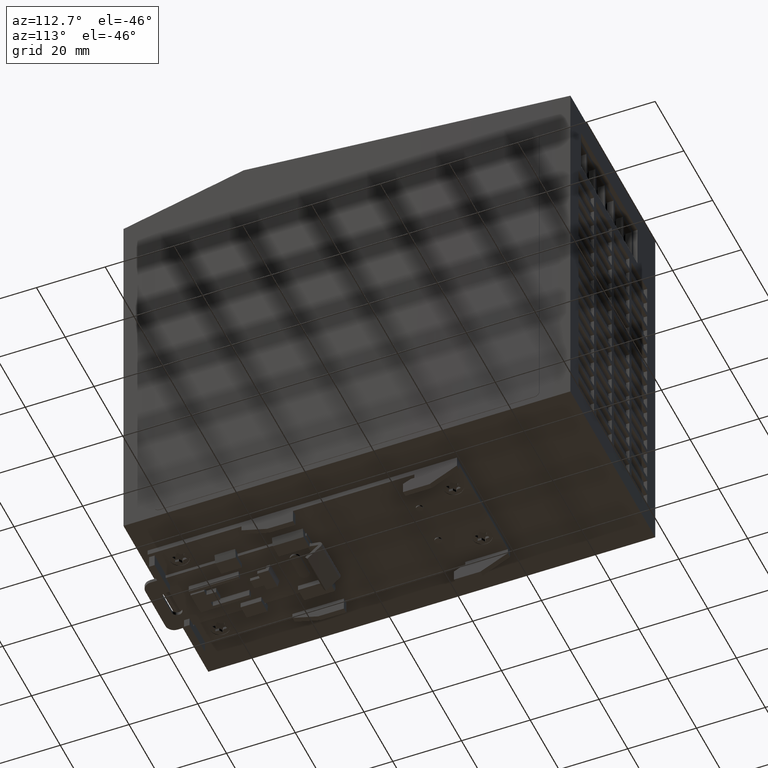
[diagram: clean part render]
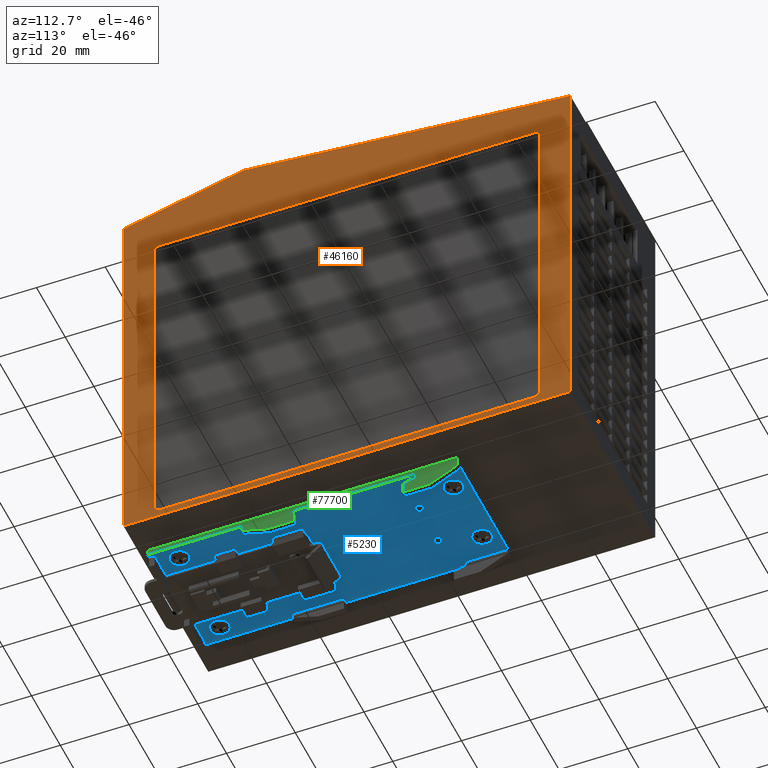
[diagram: same view with three faces highlighted in distinct colors, each labeled with its STEP entity id]
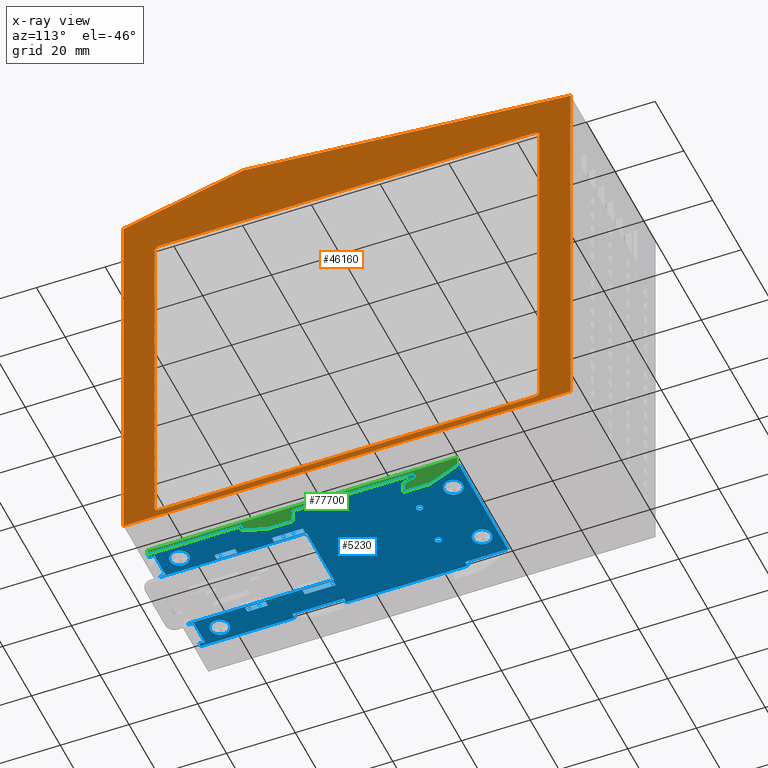
[diagram: x-ray of the same camera — body ghosted, the three highlighted faces saturated]
A machine part, auxiliary view with three faces highlighted in distinct colors.
The next image is the same camera in x-ray (body ghosted, the three faces saturated) — at least one of them is partly hidden behind the body in this view.
Their STEP definitions:

[orange] entity #46160 — the highlighted planar face has unit normal (-1, 0, 0).
#21340=CARTESIAN_POINT('',(59.,3.06755310461,8.24456136010134));
#21350=VERTEX_POINT('',#21340);
#21380=CARTESIAN_POINT('',(59.,0.,8.24457053163474));
#21390=DIRECTION('',(0.,0.99999999999553,-2.98985317938209E-6));
#21400=VECTOR('',#21390,1.);
#21410=LINE('',#21380,#21400);
#21420=CARTESIAN_POINT('',(59.,133.09953961981,8.24417258355303));
#21430=VERTEX_POINT('',#21420);
#21440=EDGE_CURVE('',#21350,#21430,#21410,.T.);
#22470=CARTESIAN_POINT('',(59.,38.0066903348388,131.664919593357));
#22480=VERTEX_POINT('',#22470);
#22510=CARTESIAN_POINT('',(59.,0.,122.188787397491));
#22520=DIRECTION('',(0.,0.970295726275989,0.241921895599697));
#22530=VECTOR('',#22520,1.);
#22540=LINE('',#22510,#22530);
#22550=CARTESIAN_POINT('',(59.,3.06755310461,122.953614286679));
#22560=VERTEX_POINT('',#22550);
#22570=EDGE_CURVE('',#22560,#22480,#22540,.T.);
#45040=CARTESIAN_POINT('',(59.,133.09953961981,122.508519645316));
#45050=VERTEX_POINT('',#45040);
#45150=CARTESIAN_POINT('',(59.,133.09953961981,0.));
#45160=DIRECTION('',(0.,0.,-1.));
#45170=VECTOR('',#45160,1.);
#45180=LINE('',#45150,#45170);
#45190=EDGE_CURVE('',#45050,#21430,#45180,.T.);
#45240=CARTESIAN_POINT('',(59.,5.0000077735952,8.2445555823456));
#45250=DIRECTION('',(-1.,0.,0.));
#45260=DIRECTION('',(0.,-0.99999999999553,2.98985317938209E-6));
#45270=AXIS2_PLACEMENT_3D('',#45240,#45250,#45260);
#45280=PLANE('',#45270);
#45290=ORIENTED_EDGE('',*,*,#22570,.F.);
#45300=CARTESIAN_POINT('',(59.,0.,135.324547630837));
#45310=DIRECTION('',(0.,0.99539619836718,-0.0958457525202146));
#45320=VECTOR('',#45310,1.);
#45330=LINE('',#45300,#45320);
#45340=EDGE_CURVE('',#22480,#45050,#45330,.T.);
#45350=ORIENTED_EDGE('',*,*,#45340,.F.);
#45360=ORIENTED_EDGE('',*,*,#45190,.F.);
#45370=ORIENTED_EDGE('',*,*,#21440,.T.);
#45380=CARTESIAN_POINT('',(59.,3.06755310461,0.));
#45390=DIRECTION('',(0.,0.,-1.));
#45400=VECTOR('',#45390,1.);
#45410=LINE('',#45380,#45400);
#45420=EDGE_CURVE('',#22560,#21350,#45410,.T.);
#45430=ORIENTED_EDGE('',*,*,#45420,.T.);
#45440=EDGE_LOOP('',(#45430,#45370,#45360,#45350,#45290));
#45450=FACE_OUTER_BOUND('',#45440,.T.);
#45460=CARTESIAN_POINT('',(59.,0.,112.244430197876));
#45470=DIRECTION('',(0.,-1.,0.));
#45480=VECTOR('',#45470,1.);
#45490=LINE('',#45460,#45480);
#45500=CARTESIAN_POINT('',(59.,122.59953961984,112.244430197876));
#45510=VERTEX_POINT('',#45500);
#45520=CARTESIAN_POINT('',(59.,13.59953961984,112.244430197876));
#45530=VERTEX_POINT('',#45520);
#45540=EDGE_CURVE('',#45510,#45530,#45490,.T.);
#45550=ORIENTED_EDGE('',*,*,#45540,.F.);
#45560=CARTESIAN_POINT('',(59.,13.59953961984,110.744430197876));
#45570=DIRECTION('',(-1.,0.,0.));
#45580=DIRECTION('',(0.,-1.,0.));
#45590=AXIS2_PLACEMENT_3D('',#45560,#45570,#45580);
#45600=CIRCLE('',#45590,1.5);
#45610=CARTESIAN_POINT('',(59.,12.09953961984,110.744430197876));
#45620=VERTEX_POINT('',#45610);
#45630=EDGE_CURVE('',#45620,#45530,#45600,.T.);
#45640=ORIENTED_EDGE('',*,*,#45630,.T.);
#45650=CARTESIAN_POINT('',(59.,12.09953961984,0.));
#45660=DIRECTION('',(0.,0.,-1.));
#45670=VECTOR('',#45660,1.);
#45680=LINE('',#45650,#45670);
#45690=CARTESIAN_POINT('',(59.,12.09953961984,11.7444301978763));
#45700=VERTEX_POINT('',#45690);
#45710=EDGE_CURVE('',#45620,#45700,#45680,.T.);
#45720=ORIENTED_EDGE('',*,*,#45710,.F.);
#45730=CARTESIAN_POINT('',(59.,13.59953961984,11.7444301978763));
#45740=DIRECTION('',(-1.,0.,0.));
#45750=DIRECTION('',(0.,0.,-1.));
#45760=AXIS2_PLACEMENT_3D('',#45730,#45740,#45750);
#45770=CIRCLE('',#45760,1.5);
#45780=CARTESIAN_POINT('',(59.,13.59953961984,10.2444301978763));
#45790=VERTEX_POINT('',#45780);
#45800=EDGE_CURVE('',#45790,#45700,#45770,.T.);
#45810=ORIENTED_EDGE('',*,*,#45800,.T.);
#45820=CARTESIAN_POINT('',(59.,0.,10.2444301978763));
#45830=DIRECTION('',(0.,1.,0.));
#45840=VECTOR('',#45830,1.);
#45850=LINE('',#45820,#45840);
#45860=CARTESIAN_POINT('',(59.,122.59953961984,10.2444301978763));
#45870=VERTEX_POINT('',#45860);
#45880=EDGE_CURVE('',#45790,#45870,#45850,.T.);
#45890=ORIENTED_EDGE('',*,*,#45880,.F.);
#45900=CARTESIAN_POINT('',(59.,122.59953961984,11.7444301978763));
#45910=DIRECTION('',(-1.,0.,0.));
#45920=DIRECTION('',(0.,1.,0.));
#45930=AXIS2_PLACEMENT_3D('',#45900,#45910,#45920);
#45940=CIRCLE('',#45930,1.5);
#45950=CARTESIAN_POINT('',(59.,124.09953961984,11.7444301978763));
#45960=VERTEX_POINT('',#45950);
#45970=EDGE_CURVE('',#45960,#45870,#45940,.T.);
#45980=ORIENTED_EDGE('',*,*,#45970,.T.);
#45990=CARTESIAN_POINT('',(59.,124.09953961984,0.));
#46000=DIRECTION('',(0.,0.,1.));
#46010=VECTOR('',#46000,1.);
#46020=LINE('',#45990,#46010);
#46030=CARTESIAN_POINT('',(59.,124.09953961984,110.744430197876));
#46040=VERTEX_POINT('',#46030);
#46050=EDGE_CURVE('',#45960,#46040,#46020,.T.);
#46060=ORIENTED_EDGE('',*,*,#46050,.F.);
#46070=CARTESIAN_POINT('',(59.,122.59953961984,110.744430197876));
#46080=DIRECTION('',(-1.,0.,0.));
#46090=DIRECTION('',(0.,0.,1.));
#46100=AXIS2_PLACEMENT_3D('',#46070,#46080,#46090);
#46110=CIRCLE('',#46100,1.5);
#46120=EDGE_CURVE('',#45510,#46040,#46110,.T.);
#46130=ORIENTED_EDGE('',*,*,#46120,.T.);
#46140=EDGE_LOOP('',(#46130,#46060,#45980,#45890,#45810,#45720,#45640,
#45550));
#46150=FACE_BOUND('',#46140,.T.);
#46160=ADVANCED_FACE('',(#45450,#46150),#45280,.F.);

[blue] entity #5230 — the highlighted planar face has unit normal (0, 0, 1).
#590=CARTESIAN_POINT('',(39.3,5.5000029898286,6.64455408746699));
#600=VERTEX_POINT('',#590);
#750=CARTESIAN_POINT('',(39.3,7.10000298982143,6.64454930370191));
#760=VERTEX_POINT('',#750);
#790=CARTESIAN_POINT('',(39.3,0.,6.64457053166842));
#800=DIRECTION('',(0.,0.99999999999553,-2.98985317938209E-6));
#810=VECTOR('',#800,1.);
#820=LINE('',#790,#810);
#830=EDGE_CURVE('',#600,#760,#820,.T.);
#950=CARTESIAN_POINT('',(25.5719295718148,5.5000029898286,6.644554087467
));
#960=DIRECTION('',(-0.,2.98985317938209E-6,0.99999999999553));
#970=DIRECTION('',(1.,0.,0.));
#980=AXIS2_PLACEMENT_3D('',#950,#960,#970);
#990=PLANE('',#980);
#1000=CARTESIAN_POINT('',(19.6821231691335,0.,6.64457053166842));
#1010=DIRECTION('',(2.15024948946507E-22,-0.99999999999553,
2.98985317938209E-6));
#1020=VECTOR('',#1010,1.);
#1030=LINE('',#1000,#1020);
#1040=CARTESIAN_POINT('',(19.6821231691335,28.000002989728,
6.64448681577046));
#1050=VERTEX_POINT('',#1040);
#1060=CARTESIAN_POINT('',(19.6821231691335,22.0000029897548,
6.64450475488954));
#1070=VERTEX_POINT('',#1060);
#1080=EDGE_CURVE('',#1050,#1070,#1030,.T.);
#1090=ORIENTED_EDGE('',*,*,#1080,.F.);
#1100=CARTESIAN_POINT('',(0.,22.0000029897548,6.64450475488954));
#1110=DIRECTION('',(1.,-2.11758236812629E-22,6.33126037606456E-28));
#1120=VECTOR('',#1110,1.);
#1130=LINE('',#1100,#1120);
#1140=CARTESIAN_POINT('',(18.0574405901159,22.0000029897548,
6.64450475488954));
#1150=VERTEX_POINT('',#1140);
#1160=EDGE_CURVE('',#1150,#1070,#1130,.T.);
#1170=ORIENTED_EDGE('',*,*,#1160,.T.);
#1180=CARTESIAN_POINT('',(18.0574405901159,0.,6.64457053166842));
#1190=DIRECTION('',(-2.15024948946507E-22,0.99999999999553,
-2.98985317938209E-6));
#1200=VECTOR('',#1190,1.);
#1210=LINE('',#1180,#1200);
#1220=CARTESIAN_POINT('',(18.0574405901159,28.000002989728,
6.64448681577046));
#1230=VERTEX_POINT('',#1220);
#1240=EDGE_CURVE('',#1150,#1230,#1210,.T.);
#1250=ORIENTED_EDGE('',*,*,#1240,.F.);
#1260=CARTESIAN_POINT('',(0.,28.000002989728,6.64448681577046));
#1270=DIRECTION('',(1.,-2.11758236812629E-22,6.33126037606456E-28));
#1280=VECTOR('',#1270,1.);
#1290=LINE('',#1260,#1280);
#1300=EDGE_CURVE('',#1230,#1050,#1290,.T.);
#1310=ORIENTED_EDGE('',*,*,#1300,.F.);
#1320=EDGE_LOOP('',(#1310,#1250,#1170,#1090));
#1330=FACE_BOUND('',#1320,.T.);
#1340=CARTESIAN_POINT('',(40.9425594098841,0.,6.64457053166842));
#1350=DIRECTION('',(2.15024948946507E-22,-0.99999999999553,
2.98985317938209E-6));
#1360=VECTOR('',#1350,1.);
#1370=LINE('',#1340,#1360);
#1380=CARTESIAN_POINT('',(40.9425594098841,47.70000298964,
6.64442791566283));
#1390=VERTEX_POINT('',#1380);
#1400=CARTESIAN_POINT('',(40.9425594098842,38.7000029896802,
6.64445482434144));
#1410=VERTEX_POINT('',#1400);
#1420=EDGE_CURVE('',#1390,#1410,#1370,.T.);
#1430=ORIENTED_EDGE('',*,*,#1420,.F.);
#1440=CARTESIAN_POINT('',(0.,38.7000029896802,6.64445482434144));
#1450=DIRECTION('',(1.,-2.11758236812629E-22,6.33126037606456E-28));
#1460=VECTOR('',#1450,1.);
#1470=LINE('',#1440,#1460);
#1480=CARTESIAN_POINT('',(39.3178768308665,38.7000029896802,
6.64445482434144));
#1490=VERTEX_POINT('',#1480);
#1500=EDGE_CURVE('',#1490,#1410,#1470,.T.);
#1510=ORIENTED_EDGE('',*,*,#1500,.T.);
#1520=CARTESIAN_POINT('',(39.3178768308665,0.,6.64457053166842));
#1530=DIRECTION('',(-2.15024948946507E-22,0.99999999999553,
-2.98985317938209E-6));
#1540=VECTOR('',#1530,1.);
#1550=LINE('',#1520,#1540);
#1560=CARTESIAN_POINT('',(39.3178768308665,47.70000298964,
6.64442791566283));
#1570=VERTEX_POINT('',#1560);
#1580=EDGE_CURVE('',#1490,#1570,#1550,.T.);
#1590=ORIENTED_EDGE('',*,*,#1580,.F.);
#1600=CARTESIAN_POINT('',(0.,47.70000298964,6.64442791566283));
#1610=DIRECTION('',(1.,3.17637355218943E-22,-9.49689056403806E-28));
#1620=VECTOR('',#1610,1.);
#1630=LINE('',#1600,#1620);
#1640=EDGE_CURVE('',#1570,#1390,#1630,.T.);
#1650=ORIENTED_EDGE('',*,*,#1640,.F.);
#1660=EDGE_LOOP('',(#1650,#1590,#1510,#1430));
#1670=FACE_BOUND('',#1660,.T.);
#1680=CARTESIAN_POINT('',(19.6821231691335,0.,6.64457053166842));
#1690=DIRECTION('',(2.15024948946507E-22,-0.99999999999553,
2.98985317938209E-6));
#1700=VECTOR('',#1690,1.);
#1710=LINE('',#1680,#1700);
#1720=CARTESIAN_POINT('',(19.6821231691335,47.70000298964,
6.64442791566283));
#1730=VERTEX_POINT('',#1720);
#1740=CARTESIAN_POINT('',(19.6821231691335,38.7000029896802,
6.64445482434144));
#1750=VERTEX_POINT('',#1740);
#1760=EDGE_CURVE('',#1730,#1750,#1710,.T.);
#1770=ORIENTED_EDGE('',*,*,#1760,.F.);
#1780=CARTESIAN_POINT('',(0.,38.7000029896802,6.64445482434144));
#1790=DIRECTION('',(1.,-2.11758236812629E-22,6.33126037606456E-28));
#1800=VECTOR('',#1790,1.);
#1810=LINE('',#1780,#1800);
#1820=CARTESIAN_POINT('',(18.057440590116,38.7000029896802,
6.64445482434144));
#1830=VERTEX_POINT('',#1820);
#1840=EDGE_CURVE('',#1830,#1750,#1810,.T.);
#1850=ORIENTED_EDGE('',*,*,#1840,.T.);
#1860=CARTESIAN_POINT('',(18.0574405901159,0.,6.64457053166842));
#1870=DIRECTION('',(-2.15024948946507E-22,0.99999999999553,
-2.98985317938209E-6));
#1880=VECTOR('',#1870,1.);
#1890=LINE('',#1860,#1880);
#1900=CARTESIAN_POINT('',(18.0574405901159,47.70000298964,
6.64442791566283));
#1910=VERTEX_POINT('',#1900);
#1920=EDGE_CURVE('',#1830,#1910,#1890,.T.);
#1930=ORIENTED_EDGE('',*,*,#1920,.F.);
#1940=CARTESIAN_POINT('',(0.,47.70000298964,6.64442791566283));
#1950=DIRECTION('',(1.,3.17637355218943E-22,-9.49689056403806E-28));
#1960=VECTOR('',#1950,1.);
#1970=LINE('',#1940,#1960);
#1980=EDGE_CURVE('',#1910,#1730,#1970,.T.);
#1990=ORIENTED_EDGE('',*,*,#1980,.F.);
#2000=EDGE_LOOP('',(#1990,#1930,#1850,#1770));
#2010=FACE_BOUND('',#2000,.T.);
#2020=CARTESIAN_POINT('',(36.,79.6000029894974,6.6443325393464));
#2030=DIRECTION('',(6.84227765783602E-49,-2.98985317938209E-6,
-0.99999999999553));
#2040=DIRECTION('',(-1.61558713388541E-27,0.99999999999553,
-2.98985317938209E-6));
#2050=AXIS2_PLACEMENT_3D('',#2020,#2030,#2040);
#2060=CIRCLE('',#2050,1.);
#2070=CARTESIAN_POINT('',(36.,80.600002989493,6.64432954949323));
#2080=VERTEX_POINT('',#2070);
#2090=CARTESIAN_POINT('',(36.,78.6000029895019,6.64433552919958));
#2100=VERTEX_POINT('',#2090);
#2110=EDGE_CURVE('',#2080,#2100,#2060,.T.);
#2120=ORIENTED_EDGE('',*,*,#2110,.F.);
#2130=EDGE_CURVE('',#2100,#2080,#2060,.T.);
#2140=ORIENTED_EDGE('',*,*,#2130,.F.);
#2150=EDGE_LOOP('',(#2140,#2120));
#2160=FACE_BOUND('',#2150,.T.);
#2170=CARTESIAN_POINT('',(23.,79.6000029894974,6.6443325393464));
#2180=DIRECTION('',(6.84227765783602E-49,-2.98985317938209E-6,
-0.99999999999553));
#2190=DIRECTION('',(-1.61558713388541E-27,0.99999999999553,
-2.98985317938209E-6));
#2200=AXIS2_PLACEMENT_3D('',#2170,#2180,#2190);
#2210=CIRCLE('',#2200,1.);
#2220=CARTESIAN_POINT('',(23.,78.6000029895019,6.64433552919958));
#2230=VERTEX_POINT('',#2220);
#2240=CARTESIAN_POINT('',(23.,80.600002989493,6.64432954949323));
#2250=VERTEX_POINT('',#2240);
#2260=EDGE_CURVE('',#2230,#2250,#2210,.T.);
#2270=ORIENTED_EDGE('',*,*,#2260,.F.);
#2280=EDGE_CURVE('',#2250,#2230,#2210,.T.);
#2290=ORIENTED_EDGE('',*,*,#2280,.F.);
#2300=EDGE_LOOP('',(#2290,#2270));
#2310=FACE_BOUND('',#2300,.T.);
#2320=CARTESIAN_POINT('',(39.5,90.9000029894475,6.64429875400548));
#2330=DIRECTION('',(-6.84227765783602E-49,2.98985317938209E-6,
0.99999999999553));
#2340=DIRECTION('',(1.29374273586324E-19,0.99999999999553,
-2.98985317938209E-6));
#2350=AXIS2_PLACEMENT_3D('',#2320,#2330,#2340);
#2360=CIRCLE('',#2350,2.8);
#2370=CARTESIAN_POINT('',(39.5,88.10000298946,6.64430712559438));
#2380=VERTEX_POINT('',#2370);
#2390=CARTESIAN_POINT('',(39.5,93.700002989435,6.64429038241658));
#2400=VERTEX_POINT('',#2390);
#2410=EDGE_CURVE('',#2380,#2400,#2360,.T.);
#2420=ORIENTED_EDGE('',*,*,#2410,.T.);
#2430=EDGE_CURVE('',#2400,#2380,#2360,.T.);
#2440=ORIENTED_EDGE('',*,*,#2430,.T.);
#2450=EDGE_LOOP('',(#2440,#2420));
#2460=FACE_BOUND('',#2450,.T.);
#2470=CARTESIAN_POINT('',(40.9425594098841,0.,6.64457053166842));
#2480=DIRECTION('',(-2.15024948946507E-22,-0.99999999999553,
2.98985317938209E-6));
#2490=VECTOR('',#2480,1.);
#2500=LINE('',#2470,#2490);
#2510=CARTESIAN_POINT('',(40.9425594098841,28.000002989728,
6.64448681577046));
#2520=VERTEX_POINT('',#2510);
#2530=CARTESIAN_POINT('',(40.9425594098841,22.0000029897548,
6.64450475488954));
#2540=VERTEX_POINT('',#2530);
#2550=EDGE_CURVE('',#2520,#2540,#2500,.T.);
#2560=ORIENTED_EDGE('',*,*,#2550,.F.);
#2570=CARTESIAN_POINT('',(0.,22.0000029897548,6.64450475488954));
#2580=DIRECTION('',(1.,-2.11758236812629E-22,6.33126037606456E-28));
#2590=VECTOR('',#2580,1.);
#2600=LINE('',#2570,#2590);
#2610=CARTESIAN_POINT('',(39.3178768308665,22.0000029897548,
6.64450475488954));
#2620=VERTEX_POINT('',#2610);
#2630=EDGE_CURVE('',#2620,#2540,#2600,.T.);
#2640=ORIENTED_EDGE('',*,*,#2630,.T.);
#2650=CARTESIAN_POINT('',(39.3178768308665,0.,6.64457053166842));
#2660=DIRECTION('',(2.15024948946507E-22,0.99999999999553,
-2.98985317938209E-6));
#2670=VECTOR('',#2660,1.);
#2680=LINE('',#2650,#2670);
#2690=CARTESIAN_POINT('',(39.3178768308665,28.000002989728,
6.64448681577046));
#2700=VERTEX_POINT('',#2690);
#2710=EDGE_CURVE('',#2620,#2700,#2680,.T.);
#2720=ORIENTED_EDGE('',*,*,#2710,.F.);
#2730=CARTESIAN_POINT('',(0.,28.000002989728,6.64448681577046));
#2740=DIRECTION('',(1.,-2.11758236812629E-22,6.33126037606456E-28));
#2750=VECTOR('',#2740,1.);
#2760=LINE('',#2730,#2750);
#2770=EDGE_CURVE('',#2700,#2520,#2760,.T.);
#2780=ORIENTED_EDGE('',*,*,#2770,.F.);
#2790=EDGE_LOOP('',(#2780,#2720,#2640,#2560));
#2800=FACE_BOUND('',#2790,.T.);
#2810=CARTESIAN_POINT('',(0.,83.1000029894817,6.64432207486028));
#2820=DIRECTION('',(-1.,0.,0.));
#2830=VECTOR('',#2820,1.);
#2840=LINE('',#2810,#2830);
#2850=CARTESIAN_POINT('',(12.6,83.1000029894818,6.64432207486028));
#2860=VERTEX_POINT('',#2850);
#2870=CARTESIAN_POINT('',(11.,83.1000029894818,6.64432207486028));
#2880=VERTEX_POINT('',#2870);
#2890=EDGE_CURVE('',#2860,#2880,#2840,.T.);
#2900=ORIENTED_EDGE('',*,*,#2890,.F.);
#2910=CARTESIAN_POINT('',(11.,0.,6.64457053166842));
#2920=DIRECTION('',(0.,-0.99999999999553,2.98985317938209E-6));
#2930=VECTOR('',#2920,1.);
#2940=LINE('',#2910,#2930);
#2950=CARTESIAN_POINT('',(11.,47.8000029896395,6.64442761667751));
#2960=VERTEX_POINT('',#2950);
#2970=EDGE_CURVE('',#2880,#2960,#2940,.T.);
#2980=ORIENTED_EDGE('',*,*,#2970,.F.);
#2990=CARTESIAN_POINT('',(0.,47.8000029896395,6.64442761667751));
#3000=DIRECTION('',(1.,0.,0.));
#3010=VECTOR('',#3000,1.);
#3020=LINE('',#2990,#3010);
#3030=CARTESIAN_POINT('',(12.6,47.8000029896395,6.64442761667751));
#3040=VERTEX_POINT('',#3030);
#3050=EDGE_CURVE('',#2960,#3040,#3020,.T.);
#3060=ORIENTED_EDGE('',*,*,#3050,.F.);
#3070=CARTESIAN_POINT('',(12.6,0.,6.64457053166842));
#3080=DIRECTION('',(0.,-0.99999999999553,2.98985317938209E-6));
#3090=VECTOR('',#3080,1.);
#3100=LINE('',#3070,#3090);
#3110=CARTESIAN_POINT('',(12.6,32.8000029897066,6.6444724644752));
#3120=VERTEX_POINT('',#3110);
#3130=EDGE_CURVE('',#3040,#3120,#3100,.T.);
#3140=ORIENTED_EDGE('',*,*,#3130,.F.);
#3150=CARTESIAN_POINT('',(0.,32.8000029897066,6.6444724644752));
#3160=DIRECTION('',(-1.,0.,0.));
#3170=VECTOR('',#3160,1.);
#3180=LINE('',#3150,#3170);
#3190=CARTESIAN_POINT('',(11.,32.8000029897066,6.6444724644752));
#3200=VERTEX_POINT('',#3190);
#3210=EDGE_CURVE('',#3120,#3200,#3180,.T.);
#3220=ORIENTED_EDGE('',*,*,#3210,.F.);
#3230=CARTESIAN_POINT('',(11.,5.5000029898286,6.644554087467));
#3240=VERTEX_POINT('',#3230);
#3250=EDGE_CURVE('',#3200,#3240,#2940,.T.);
#3260=ORIENTED_EDGE('',*,*,#3250,.F.);
#3270=CARTESIAN_POINT('',(0.,5.5000029898286,6.64455408746699));
#3280=DIRECTION('',(1.,0.,0.));
#3290=VECTOR('',#3280,1.);
#3300=LINE('',#3270,#3290);
#3310=CARTESIAN_POINT('',(12.,5.5000029898286,6.644554087467));
#3320=VERTEX_POINT('',#3310);
#3330=EDGE_CURVE('',#3240,#3320,#3300,.T.);
#3340=ORIENTED_EDGE('',*,*,#3330,.F.);
#3350=CARTESIAN_POINT('',(12.,0.,6.64457053166842));
#3360=DIRECTION('',(0.,0.99999999999553,-2.98985317938209E-6));
#3370=VECTOR('',#3360,1.);
#3380=LINE('',#3350,#3370);
#3390=CARTESIAN_POINT('',(12.,7.10000298982143,6.64454930370191));
#3400=VERTEX_POINT('',#3390);
#3410=EDGE_CURVE('',#3320,#3400,#3380,.T.);
#3420=ORIENTED_EDGE('',*,*,#3410,.F.);
#3430=CARTESIAN_POINT('',(0.,7.10000298982143,6.64454930370191));
#3440=DIRECTION('',(-1.,0.,0.));
#3450=VECTOR('',#3440,1.);
#3460=LINE('',#3430,#3450);
#3470=CARTESIAN_POINT('',(19.7,7.10000298982143,6.64454930370191));
#3480=VERTEX_POINT('',#3470);
#3490=EDGE_CURVE('',#3480,#3400,#3460,.T.);
#3500=ORIENTED_EDGE('',*,*,#3490,.T.);
#3510=CARTESIAN_POINT('',(19.7,0.,6.64457053166842));
#3520=DIRECTION('',(0.,-0.99999999999553,2.98985317938209E-6));
#3530=VECTOR('',#3520,1.);
#3540=LINE('',#3510,#3530);
#3550=CARTESIAN_POINT('',(19.7,5.5000029898286,6.644554087467));
#3560=VERTEX_POINT('',#3550);
#3570=EDGE_CURVE('',#3480,#3560,#3540,.T.);
#3580=ORIENTED_EDGE('',*,*,#3570,.F.);
#3590=CARTESIAN_POINT('',(20.,5.5000029898286,6.644554087467));
#3600=VERTEX_POINT('',#3590);
#3610=EDGE_CURVE('',#3560,#3600,#3300,.T.);
#3620=ORIENTED_EDGE('',*,*,#3610,.F.);
#3630=CARTESIAN_POINT('',(20.,0.,6.64457053166842));
#3640=DIRECTION('',(0.,0.99999999999553,-2.98985317938209E-6));
#3650=VECTOR('',#3640,1.);
#3660=LINE('',#3630,#3650);
#3670=CARTESIAN_POINT('',(20.,48.0000029896386,6.64442701870687));
#3680=VERTEX_POINT('',#3670);
#3690=EDGE_CURVE('',#3600,#3680,#3660,.T.);
#3700=ORIENTED_EDGE('',*,*,#3690,.F.);
#3710=CARTESIAN_POINT('',(0.,48.0000029896386,6.64442701870687));
#3720=DIRECTION('',(1.,1.61558713387819E-27,-4.83036832881699E-33));
#3730=VECTOR('',#3720,1.);
#3740=LINE('',#3710,#3730);
#3750=CARTESIAN_POINT('',(39.,48.0000029896386,6.64442701870687));
#3760=VERTEX_POINT('',#3750);
#3770=EDGE_CURVE('',#3680,#3760,#3740,.T.);
#3780=ORIENTED_EDGE('',*,*,#3770,.F.);
#3790=CARTESIAN_POINT('',(39.,0.,6.64457053166842));
#3800=DIRECTION('',(0.,-0.99999999999553,2.98985317938209E-6));
#3810=VECTOR('',#3800,1.);
#3820=LINE('',#3790,#3810);
#3830=CARTESIAN_POINT('',(39.,5.5000029898286,6.644554087467));
#3840=VERTEX_POINT('',#3830);
#3850=EDGE_CURVE('',#3760,#3840,#3820,.T.);
#3860=ORIENTED_EDGE('',*,*,#3850,.F.);
#3870=EDGE_CURVE('',#3840,#600,#3300,.T.);
#3880=ORIENTED_EDGE('',*,*,#3870,.F.);
#3890=ORIENTED_EDGE('',*,*,#830,.F.);
#3900=CARTESIAN_POINT('',(0.,7.10000298982143,6.64454930370191));
#3910=DIRECTION('',(-1.,0.,0.));
#3920=VECTOR('',#3910,1.);
#3930=LINE('',#3900,#3920);
#3940=CARTESIAN_POINT('',(47.,7.10000298982143,6.64454930370191));
#3950=VERTEX_POINT('',#3940);
#3960=EDGE_CURVE('',#3950,#760,#3930,.T.);
#3970=ORIENTED_EDGE('',*,*,#3960,.T.);
#3980=CARTESIAN_POINT('',(47.,0.,6.64457053166842));
#3990=DIRECTION('',(0.,-0.99999999999553,2.98985317938209E-6));
#4000=VECTOR('',#3990,1.);
#4010=LINE('',#3980,#4000);
#4020=CARTESIAN_POINT('',(47.,5.5000029898286,6.64455408746699));
#4030=VERTEX_POINT('',#4020);
#4040=EDGE_CURVE('',#3950,#4030,#4010,.T.);
#4050=ORIENTED_EDGE('',*,*,#4040,.F.);
#4060=CARTESIAN_POINT('',(48.,5.5000029898286,6.644554087467));
#4070=VERTEX_POINT('',#4060);
#4080=EDGE_CURVE('',#4030,#4070,#3300,.T.);
#4090=ORIENTED_EDGE('',*,*,#4080,.F.);
#4100=CARTESIAN_POINT('',(48.,0.,6.64457053166842));
#4110=DIRECTION('',(0.,0.99999999999553,-2.98985317938209E-6));
#4120=VECTOR('',#4110,1.);
#4130=LINE('',#4100,#4120);
#4140=CARTESIAN_POINT('',(48.,32.8000029897066,6.6444724644752));
#4150=VERTEX_POINT('',#4140);
#4160=EDGE_CURVE('',#4070,#4150,#4130,.T.);
#4170=ORIENTED_EDGE('',*,*,#4160,.F.);
#4180=CARTESIAN_POINT('',(0.,32.8000029897066,6.6444724644752));
#4190=DIRECTION('',(-1.,0.,0.));
#4200=VECTOR('',#4190,1.);
#4210=LINE('',#4180,#4200);
#4220=CARTESIAN_POINT('',(46.4,32.8000029897066,6.6444724644752));
#4230=VERTEX_POINT('',#4220);
#4240=EDGE_CURVE('',#4150,#4230,#4210,.T.);
#4250=ORIENTED_EDGE('',*,*,#4240,.F.);
#4260=CARTESIAN_POINT('',(46.4,0.,6.64457053166842));
#4270=DIRECTION('',(0.,0.99999999999553,-2.98985317938209E-6));
#4280=VECTOR('',#4270,1.);
#4290=LINE('',#4260,#4280);
#4300=CARTESIAN_POINT('',(46.4,47.8000029896395,6.64442761667751));
#4310=VERTEX_POINT('',#4300);
#4320=EDGE_CURVE('',#4230,#4310,#4290,.T.);
#4330=ORIENTED_EDGE('',*,*,#4320,.F.);
#4340=CARTESIAN_POINT('',(0.,47.8000029896395,6.64442761667751));
#4350=DIRECTION('',(1.,0.,0.));
#4360=VECTOR('',#4350,1.);
#4370=LINE('',#4340,#4360);
#4380=CARTESIAN_POINT('',(48.,47.8000029896395,6.64442761667751));
#4390=VERTEX_POINT('',#4380);
#4400=EDGE_CURVE('',#4310,#4390,#4370,.T.);
#4410=ORIENTED_EDGE('',*,*,#4400,.F.);
#4420=CARTESIAN_POINT('',(48.,83.1000029894818,6.64432207486028));
#4430=VERTEX_POINT('',#4420);
#4440=EDGE_CURVE('',#4390,#4430,#4130,.T.);
#4450=ORIENTED_EDGE('',*,*,#4440,.F.);
#4460=CARTESIAN_POINT('',(0.,83.1000029894817,6.64432207486028));
#4470=DIRECTION('',(-1.,0.,0.));
#4480=VECTOR('',#4470,1.);
#4490=LINE('',#4460,#4480);
#4500=CARTESIAN_POINT('',(46.4,83.1000029894818,6.64432207486028));
#4510=VERTEX_POINT('',#4500);
#4520=EDGE_CURVE('',#4430,#4510,#4490,.T.);
#4530=ORIENTED_EDGE('',*,*,#4520,.F.);
#4540=CARTESIAN_POINT('',(46.4,0.,6.64457053166842));
#4550=DIRECTION('',(0.,0.99999999999553,-2.98985317938209E-6));
#4560=VECTOR('',#4550,1.);
#4570=LINE('',#4540,#4560);
#4580=CARTESIAN_POINT('',(46.4,95.5000029894263,6.64428500068085));
#4590=VERTEX_POINT('',#4580);
#4600=EDGE_CURVE('',#4510,#4590,#4570,.T.);
#4610=ORIENTED_EDGE('',*,*,#4600,.F.);
#4620=CARTESIAN_POINT('',(0.,95.5000029894263,6.64428500068085));
#4630=DIRECTION('',(-1.,0.,0.));
#4640=VECTOR('',#4630,1.);
#4650=LINE('',#4620,#4640);
#4660=CARTESIAN_POINT('',(12.6,95.5000029894264,6.64428500068085));
#4670=VERTEX_POINT('',#4660);
#4680=EDGE_CURVE('',#4590,#4670,#4650,.T.);
#4690=ORIENTED_EDGE('',*,*,#4680,.F.);
#4700=CARTESIAN_POINT('',(12.6,0.,6.64457053166842));
#4710=DIRECTION('',(0.,0.99999999999553,-2.98985317938209E-6));
#4720=VECTOR('',#4710,1.);
#4730=LINE('',#4700,#4720);
#4740=EDGE_CURVE('',#2860,#4670,#4730,.T.);
#4750=ORIENTED_EDGE('',*,*,#4740,.T.);
#4760=EDGE_LOOP('',(#4750,#4690,#4610,#4530,#4450,#4410,#4330,#4250,
#4170,#4090,#4050,#3970,#3890,#3880,#3860,#3780,#3700,#3620,#3580,#3500,
#3420,#3340,#3260,#3220,#3140,#3060,#2980,#2900));
#4770=FACE_OUTER_BOUND('',#4760,.T.);
#4780=CARTESIAN_POINT('',(19.5,90.9000029894475,6.64429875400548));
#4790=DIRECTION('',(-6.84227765783602E-49,2.98985317938209E-6,
0.99999999999553));
#4800=DIRECTION('',(1.29374273586324E-19,0.99999999999553,
-2.98985317938209E-6));
#4810=AXIS2_PLACEMENT_3D('',#4780,#4790,#4800);
#4820=CIRCLE('',#4810,2.8);
#4830=CARTESIAN_POINT('',(19.5,88.10000298946,6.64430712559438));
#4840=VERTEX_POINT('',#4830);
#4850=CARTESIAN_POINT('',(19.5,93.700002989435,6.64429038241658));
#4860=VERTEX_POINT('',#4850);
#4870=EDGE_CURVE('',#4840,#4860,#4820,.T.);
#4880=ORIENTED_EDGE('',*,*,#4870,.T.);
#4890=EDGE_CURVE('',#4860,#4840,#4820,.T.);
#4900=ORIENTED_EDGE('',*,*,#4890,.T.);
#4910=EDGE_LOOP('',(#4900,#4880));
#4920=FACE_BOUND('',#4910,.T.);
#4930=CARTESIAN_POINT('',(43.5,12.9000029897955,6.64453196255347));
#4940=DIRECTION('',(-6.84227765783602E-49,2.98985317938209E-6,
0.99999999999553));
#4950=DIRECTION('',(1.29374273586324E-19,0.99999999999553,
-2.98985317938209E-6));
#4960=AXIS2_PLACEMENT_3D('',#4930,#4940,#4950);
#4970=CIRCLE('',#4960,2.8);
#4980=CARTESIAN_POINT('',(43.5,10.100002989808,6.64454033414237));
#4990=VERTEX_POINT('',#4980);
#5000=CARTESIAN_POINT('',(43.5,15.700002989783,6.64452359096457));
#5010=VERTEX_POINT('',#5000);
#5020=EDGE_CURVE('',#4990,#5010,#4970,.T.);
#5030=ORIENTED_EDGE('',*,*,#5020,.T.);
#5040=EDGE_CURVE('',#5010,#4990,#4970,.T.);
#5050=ORIENTED_EDGE('',*,*,#5040,.T.);
#5060=EDGE_LOOP('',(#5050,#5030));
#5070=FACE_BOUND('',#5060,.T.);
#5080=CARTESIAN_POINT('',(15.5,12.9000029897955,6.64453196255347));
#5090=DIRECTION('',(-6.84227765783602E-49,2.98985317938209E-6,
0.99999999999553));
#5100=DIRECTION('',(1.29374273586324E-19,0.99999999999553,
-2.98985317938209E-6));
#5110=AXIS2_PLACEMENT_3D('',#5080,#5090,#5100);
#5120=CIRCLE('',#5110,2.8);
#5130=CARTESIAN_POINT('',(15.5,10.100002989808,6.64454033414237));
#5140=VERTEX_POINT('',#5130);
#5150=CARTESIAN_POINT('',(15.5,15.700002989783,6.64452359096457));
#5160=VERTEX_POINT('',#5150);
#5170=EDGE_CURVE('',#5140,#5160,#5120,.T.);
#5180=ORIENTED_EDGE('',*,*,#5170,.T.);
#5190=EDGE_CURVE('',#5160,#5140,#5120,.T.);
#5200=ORIENTED_EDGE('',*,*,#5190,.T.);
#5210=EDGE_LOOP('',(#5200,#5180));
#5220=FACE_BOUND('',#5210,.T.);
#5230=ADVANCED_FACE('',(#1330,#1670,#2010,#2160,#2310,#2460,#2800,#4770,
#4920,#5070,#5220),#990,.F.);

[green] entity #77700 — the highlighted planar face has unit normal (-1, 0, 0).
#4060=CARTESIAN_POINT('',(48.,5.5000029898286,6.644554087467));
#4070=VERTEX_POINT('',#4060);
#4100=CARTESIAN_POINT('',(48.,0.,6.64457053166842));
#4110=DIRECTION('',(0.,0.99999999999553,-2.98985317938209E-6));
#4120=VECTOR('',#4110,1.);
#4130=LINE('',#4100,#4120);
#4140=CARTESIAN_POINT('',(48.,32.8000029897066,6.6444724644752));
#4150=VERTEX_POINT('',#4140);
#4160=EDGE_CURVE('',#4070,#4150,#4130,.T.);
#4380=CARTESIAN_POINT('',(48.,47.8000029896395,6.64442761667751));
#4390=VERTEX_POINT('',#4380);
#4420=CARTESIAN_POINT('',(48.,83.1000029894818,6.64432207486028));
#4430=VERTEX_POINT('',#4420);
#4440=EDGE_CURVE('',#4390,#4430,#4130,.T.);
#20900=CARTESIAN_POINT('',(48.,5.50000777359369,8.24455408741901));
#20910=VERTEX_POINT('',#20900);
#21080=CARTESIAN_POINT('',(48.,95.5000077731915,8.24428500063287));
#21090=VERTEX_POINT('',#21080);
#21120=CARTESIAN_POINT('',(48.,0.,8.24457053163474));
#21130=DIRECTION('',(0.,-0.99999999999553,2.98985317938209E-6));
#21140=VECTOR('',#21130,1.);
#21150=LINE('',#21120,#21140);
#21160=EDGE_CURVE('',#21090,#20910,#21150,.T.);
#47050=CARTESIAN_POINT('',(48.,95.4999985046466,5.144285000688));
#47060=VERTEX_POINT('',#47050);
#47090=CARTESIAN_POINT('',(48.,95.5000029894263,6.64428500068085));
#47100=DIRECTION('',(0.,-2.98985317938209E-6,-0.99999999999553));
#47110=VECTOR('',#47100,1.);
#47120=LINE('',#47090,#47110);
#47130=EDGE_CURVE('',#21090,#47060,#47120,.T.);
#47300=CARTESIAN_POINT('',(48.,47.8000029896395,6.64442761667751));
#47310=DIRECTION('',(0.,-2.98985317938209E-6,-0.99999999999553));
#47320=VECTOR('',#47310,1.);
#47330=LINE('',#47300,#47320);
#47340=CARTESIAN_POINT('',(48.,47.7999913292121,2.74442761669494));
#47350=VERTEX_POINT('',#47340);
#47360=EDGE_CURVE('',#4390,#47350,#47330,.T.);
#48070=CARTESIAN_POINT('',(48.,40.2999913292451,2.74445004059379));
#48080=DIRECTION('',(0.,-0.952423235960384,0.304778574710808));
#48090=VECTOR('',#48080,1.);
#48100=LINE('',#48070,#48090);
#48110=CARTESIAN_POINT('',(48.,40.2999913292453,2.74445004059379));
#48120=VERTEX_POINT('',#48110);
#48130=CARTESIAN_POINT('',(48.,32.7999985049268,5.1444724644819));
#48140=VERTEX_POINT('',#48130);
#48150=EDGE_CURVE('',#48120,#48140,#48100,.T.);
#48450=CARTESIAN_POINT('',(48.,32.8000029897066,6.6444724644752));
#48460=DIRECTION('',(0.,2.98985317938209E-6,0.99999999999553));
#48470=VECTOR('',#48460,1.);
#48480=LINE('',#48450,#48470);
#48490=EDGE_CURVE('',#48140,#4150,#48480,.T.);
#48690=CARTESIAN_POINT('',(48.,65.499991329133,2.74437469629367));
#48700=DIRECTION('',(0.,-0.99999999999553,2.98985317938209E-6));
#48710=VECTOR('',#48700,1.);
#48720=LINE('',#48690,#48710);
#48730=EDGE_CURVE('',#47350,#48120,#48720,.T.);
#48940=CARTESIAN_POINT('',(48.,5.49998312358744,0.));
#48950=DIRECTION('',(0.,2.98985317938209E-6,0.99999999999553));
#48960=VECTOR('',#48950,1.);
#48970=LINE('',#48940,#48960);
#48980=EDGE_CURVE('',#4070,#20910,#48970,.T.);
#77080=CARTESIAN_POINT('',(48.,95.5000077731915,8.2442850006737));
#77090=DIRECTION('',(-1.,0.,-0.));
#77100=DIRECTION('',(0.,0.99999999999553,-2.98985317938209E-6));
#77110=AXIS2_PLACEMENT_3D('',#77080,#77090,#77100);
#77120=PLANE('',#77110);
#77130=ORIENTED_EDGE('',*,*,#21160,.T.);
#77140=ORIENTED_EDGE('',*,*,#47130,.F.);
#77150=CARTESIAN_POINT('',(48.,95.4999985046466,5.144285000688));
#77160=DIRECTION('',(0.,-0.894428528098889,-0.447210921292018));
#77170=VECTOR('',#77160,1.);
#77180=LINE('',#77150,#77170);
#77190=CARTESIAN_POINT('',(48.,87.4999865452696,1.14430891953087));
#77200=VERTEX_POINT('',#77190);
#77210=EDGE_CURVE('',#47060,#77200,#77180,.T.);
#77220=ORIENTED_EDGE('',*,*,#77210,.F.);
#77230=CARTESIAN_POINT('',(48.,65.4999865453679,1.14437469630082));
#77240=DIRECTION('',(0.,-0.99999999999553,2.98985317938209E-6));
#77250=VECTOR('',#77240,1.);
#77260=LINE('',#77230,#77250);
#77270=CARTESIAN_POINT('',(48.,79.799986545304,1.14433194140035));
#77280=VERTEX_POINT('',#77270);
#77290=EDGE_CURVE('',#77200,#77280,#77260,.T.);
#77300=ORIENTED_EDGE('',*,*,#77290,.F.);
#77310=CARTESIAN_POINT('',(48.,79.8000029894965,6.64433194137577));
#77320=DIRECTION('',(0.,2.98985317938209E-6,0.99999999999553));
#77330=VECTOR('',#77320,1.);
#77340=LINE('',#77310,#77330);
#77350=CARTESIAN_POINT('',(48.,79.7999958960472,4.27182432762997));
#77360=VERTEX_POINT('',#77350);
#77370=EDGE_CURVE('',#77280,#77360,#77340,.T.);
#77380=ORIENTED_EDGE('',*,*,#77370,.F.);
#77390=CARTESIAN_POINT('',(48.,79.7999958960471,4.27182432762993));
#77400=DIRECTION('',(0.,0.906309050599144,0.422615552011612));
#77410=VECTOR('',#77400,1.);
#77420=LINE('',#77390,#77410);
#77430=CARTESIAN_POINT('',(48.,82.0999991026771,5.34432506471927));
#77440=VERTEX_POINT('',#77430);
#77450=EDGE_CURVE('',#77360,#77440,#77420,.T.);
#77460=ORIENTED_EDGE('',*,*,#77450,.F.);
#77470=CARTESIAN_POINT('',(48.,82.0999991026771,5.34432506471927));
#77480=DIRECTION('',(0.,0.99999999999553,-2.98985317938209E-6));
#77490=VECTOR('',#77480,1.);
#77500=LINE('',#77470,#77490);
#77510=CARTESIAN_POINT('',(48.,83.0999991026726,5.34432207486609));
#77520=VERTEX_POINT('',#77510);
#77530=EDGE_CURVE('',#77440,#77520,#77500,.T.);
#77540=ORIENTED_EDGE('',*,*,#77530,.F.);
#77550=CARTESIAN_POINT('',(48.,83.1000029894818,6.64432207486028));
#77560=DIRECTION('',(0.,2.98985317938209E-6,0.99999999999553));
#77570=VECTOR('',#77560,1.);
#77580=LINE('',#77550,#77570);
#77590=EDGE_CURVE('',#77520,#4430,#77580,.T.);
#77600=ORIENTED_EDGE('',*,*,#77590,.F.);
#77610=ORIENTED_EDGE('',*,*,#4440,.T.);
#77620=ORIENTED_EDGE('',*,*,#47360,.F.);
#77630=ORIENTED_EDGE('',*,*,#48730,.F.);
#77640=ORIENTED_EDGE('',*,*,#48150,.F.);
#77650=ORIENTED_EDGE('',*,*,#48490,.F.);
#77660=ORIENTED_EDGE('',*,*,#4160,.T.);
#77670=ORIENTED_EDGE('',*,*,#48980,.F.);
#77680=EDGE_LOOP('',(#77670,#77660,#77650,#77640,#77630,#77620,#77610,
#77600,#77540,#77460,#77380,#77300,#77220,#77140,#77130));
#77690=FACE_OUTER_BOUND('',#77680,.T.);
#77700=ADVANCED_FACE('',(#77690),#77120,.F.);